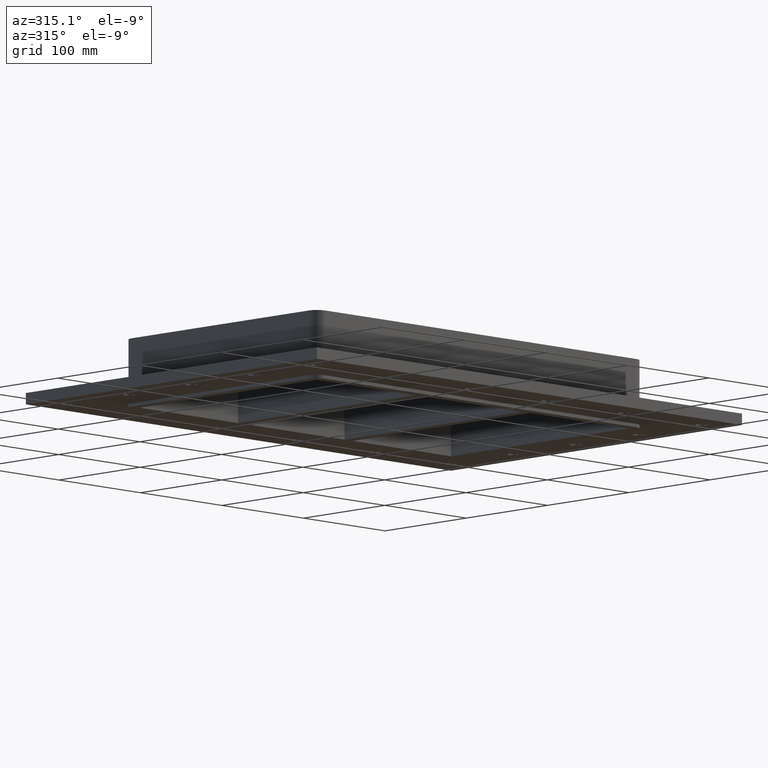
[diagram: clean part render]
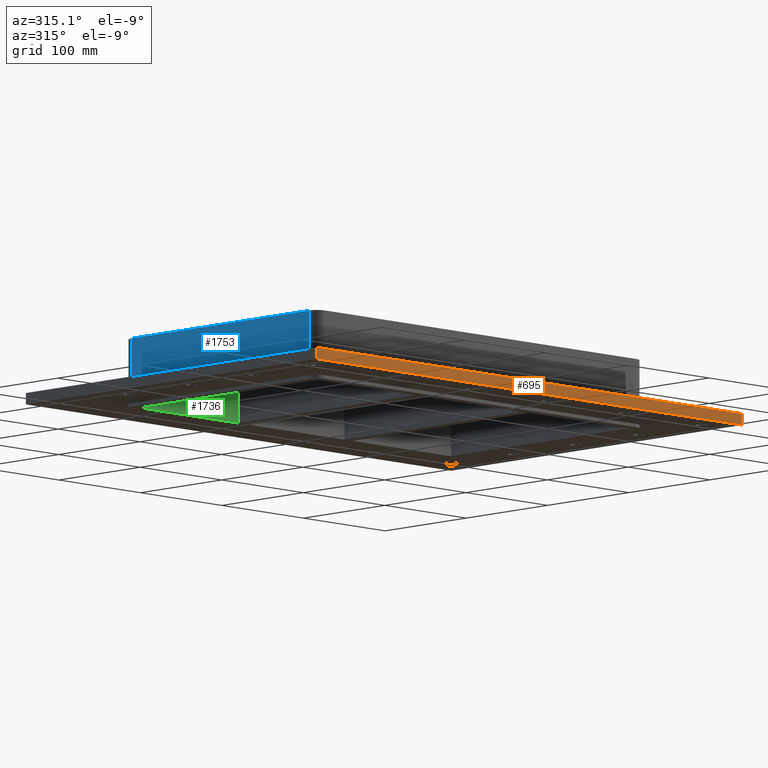
[diagram: same view with three faces highlighted in distinct colors, each labeled with its STEP entity id]
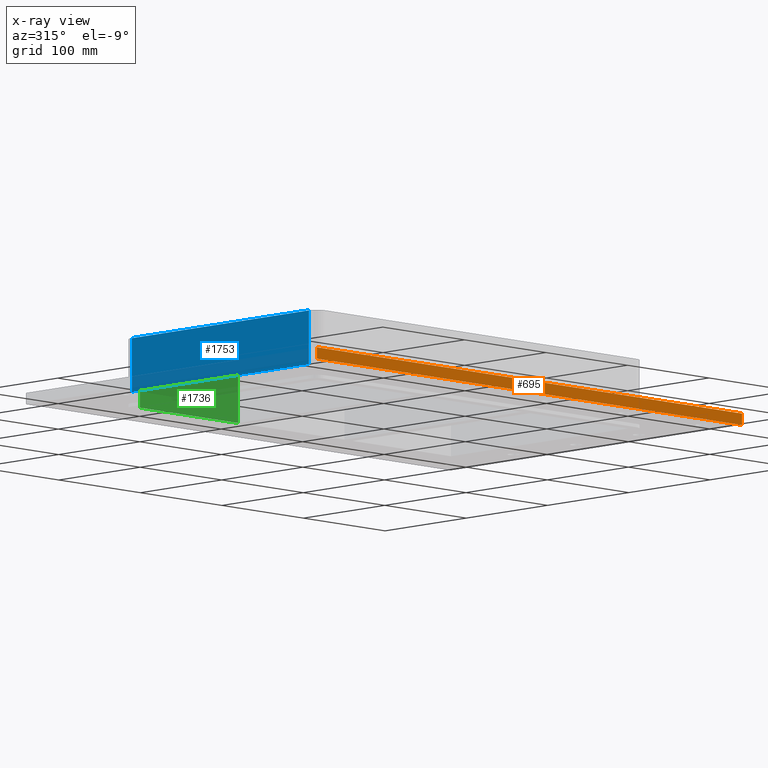
[diagram: x-ray of the same camera — body ghosted, the three highlighted faces saturated]
A machine part, auxiliary view with three faces highlighted in distinct colors.
The next image is the same camera in x-ray (body ghosted, the three faces saturated) — at least one of them is partly hidden behind the body in this view.
Their STEP definitions:

[orange] entity #695 — the highlighted planar face has unit normal (0, -1, 0).
#577=CARTESIAN_POINT('',(-260.75,-179.00000000000006,-27.0));
#578=VERTEX_POINT('',#577);
#587=CARTESIAN_POINT('',(-260.75,-179.00000000000006,-17.0));
#588=VERTEX_POINT('',#587);
#589=CARTESIAN_POINT('',(-260.75,-179.00000000000006,-27.0));
#590=DIRECTION('',(0.0,0.0,1.0));
#591=VECTOR('',#590,10.0);
#592=LINE('',#589,#591);
#593=EDGE_CURVE('',#578,#588,#592,.T.);
#648=CARTESIAN_POINT('',(260.75000000000006,-179.0,-27.0));
#649=VERTEX_POINT('',#648);
#657=CARTESIAN_POINT('',(260.75000000000006,-179.0,-17.0));
#658=VERTEX_POINT('',#657);
#665=CARTESIAN_POINT('',(260.75000000000006,-179.0,-27.0));
#666=DIRECTION('',(0.0,0.0,1.0));
#667=VECTOR('',#666,10.0);
#668=LINE('',#665,#667);
#669=EDGE_CURVE('',#649,#658,#668,.T.);
#674=CARTESIAN_POINT('',(-260.75,-179.00000000000006,-27.0));
#675=DIRECTION('',(0.0,-1.0,0.0));
#676=DIRECTION('',(1.0,0.0,0.0));
#677=AXIS2_PLACEMENT_3D('',#674,#675,#676);
#678=PLANE('',#677);
#679=CARTESIAN_POINT('',(260.75000000000006,-179.0,-27.0));
#680=DIRECTION('',(-1.0,0.0,0.0));
#681=VECTOR('',#680,521.5);
#682=LINE('',#679,#681);
#683=EDGE_CURVE('',#649,#578,#682,.T.);
#684=ORIENTED_EDGE('',*,*,#683,.F.);
#685=ORIENTED_EDGE('',*,*,#669,.T.);
#686=CARTESIAN_POINT('',(-260.74999999999994,-179.00000000000006,-17.0));
#687=DIRECTION('',(1.0,0.0,0.0));
#688=VECTOR('',#687,521.5);
#689=LINE('',#686,#688);
#690=EDGE_CURVE('',#588,#658,#689,.T.);
#691=ORIENTED_EDGE('',*,*,#690,.F.);
#692=ORIENTED_EDGE('',*,*,#593,.F.);
#693=EDGE_LOOP('',(#684,#685,#691,#692));
#694=FACE_OUTER_BOUND('',#693,.T.);
#695=ADVANCED_FACE('',(#694),#678,.T.);

[blue] entity #1753 — the highlighted planar face has unit normal (-1, 0, 0).
#797=CARTESIAN_POINT('',(-200.75000000000003,-109.00000000000006,-17.0));
#798=VERTEX_POINT('',#797);
#806=CARTESIAN_POINT('',(-200.75000000000003,108.99999999999999,-17.0));
#807=VERTEX_POINT('',#806);
#808=CARTESIAN_POINT('',(-200.75000000000009,108.99999999999999,-17.0));
#809=DIRECTION('',(0.0,-1.0,0.0));
#810=VECTOR('',#809,218.00000000000006);
#811=LINE('',#808,#810);
#812=EDGE_CURVE('',#807,#798,#811,.T.);
#1372=CARTESIAN_POINT('',(-200.74999999999989,-109.00000000000003,30.0));
#1373=VERTEX_POINT('',#1372);
#1381=CARTESIAN_POINT('',(-200.74999999999989,-109.00000000000004,30.0));
#1382=DIRECTION('',(0.0,0.0,-1.0));
#1383=VECTOR('',#1382,47.0);
#1384=LINE('',#1381,#1383);
#1385=EDGE_CURVE('',#1373,#798,#1384,.T.);
#1396=CARTESIAN_POINT('',(-200.75000000000011,108.99999999999999,30.0));
#1397=VERTEX_POINT('',#1396);
#1398=CARTESIAN_POINT('',(-200.75000000000011,108.99999999999999,-17.0));
#1399=DIRECTION('',(0.0,0.0,1.0));
#1400=VECTOR('',#1399,47.0);
#1401=LINE('',#1398,#1400);
#1402=EDGE_CURVE('',#807,#1397,#1401,.T.);
#1737=CARTESIAN_POINT('',(-200.75000000000011,119.00000000000003,0.0));
#1738=DIRECTION('',(-1.0,0.0,0.0));
#1739=DIRECTION('',(0.0,-1.0,0.0));
#1740=AXIS2_PLACEMENT_3D('',#1737,#1738,#1739);
#1741=PLANE('',#1740);
#1742=ORIENTED_EDGE('',*,*,#812,.T.);
#1743=ORIENTED_EDGE('',*,*,#1385,.F.);
#1744=CARTESIAN_POINT('',(-200.75000000000011,109.0,30.0));
#1745=DIRECTION('',(0.0,-1.0,0.0));
#1746=VECTOR('',#1745,218.00000000000003);
#1747=LINE('',#1744,#1746);
#1748=EDGE_CURVE('',#1397,#1373,#1747,.T.);
#1749=ORIENTED_EDGE('',*,*,#1748,.F.);
#1750=ORIENTED_EDGE('',*,*,#1402,.F.);
#1751=EDGE_LOOP('',(#1742,#1743,#1749,#1750));
#1752=FACE_OUTER_BOUND('',#1751,.T.);
#1753=ADVANCED_FACE('',(#1752),#1741,.T.);

[green] entity #1736 — the highlighted planar face has unit normal (0, 1, 0).
#1308=CARTESIAN_POINT('',(-70.250000000000071,108.99999999999999,-30.0));
#1309=VERTEX_POINT('',#1308);
#1316=CARTESIAN_POINT('',(-190.75000000000011,108.99999999999999,-30.0));
#1317=VERTEX_POINT('',#1316);
#1318=CARTESIAN_POINT('',(-70.250000000000071,108.99999999999999,-30.0));
#1319=DIRECTION('',(-1.0,0.0,0.0));
#1320=VECTOR('',#1319,120.50000000000004);
#1321=LINE('',#1318,#1320);
#1322=EDGE_CURVE('',#1309,#1317,#1321,.T.);
#1647=CARTESIAN_POINT('',(-190.75000000000011,108.99999999999999,30.0));
#1648=VERTEX_POINT('',#1647);
#1649=CARTESIAN_POINT('',(-190.75000000000011,108.99999999999999,30.0));
#1650=DIRECTION('',(0.0,0.0,-1.0));
#1651=VECTOR('',#1650,60.0);
#1652=LINE('',#1649,#1651);
#1653=EDGE_CURVE('',#1648,#1317,#1652,.T.);
#1703=CARTESIAN_POINT('',(-70.250000000000071,108.99999999999999,30.0));
#1704=VERTEX_POINT('',#1703);
#1711=CARTESIAN_POINT('',(-70.250000000000071,108.99999999999999,30.0));
#1712=DIRECTION('',(0.0,0.0,-1.0));
#1713=VECTOR('',#1712,60.0);
#1714=LINE('',#1711,#1713);
#1715=EDGE_CURVE('',#1704,#1309,#1714,.T.);
#1720=CARTESIAN_POINT('',(-190.75000000000011,108.99999999999999,30.0));
#1721=DIRECTION('',(0.0,1.0,0.0));
#1722=DIRECTION('',(1.0,0.0,0.0));
#1723=AXIS2_PLACEMENT_3D('',#1720,#1721,#1722);
#1724=PLANE('',#1723);
#1725=ORIENTED_EDGE('',*,*,#1322,.F.);
#1726=ORIENTED_EDGE('',*,*,#1715,.F.);
#1727=CARTESIAN_POINT('',(-190.75000000000011,108.99999999999999,30.0));
#1728=DIRECTION('',(1.0,0.0,0.0));
#1729=VECTOR('',#1728,120.50000000000004);
#1730=LINE('',#1727,#1729);
#1731=EDGE_CURVE('',#1648,#1704,#1730,.T.);
#1732=ORIENTED_EDGE('',*,*,#1731,.F.);
#1733=ORIENTED_EDGE('',*,*,#1653,.T.);
#1734=EDGE_LOOP('',(#1725,#1726,#1732,#1733));
#1735=FACE_OUTER_BOUND('',#1734,.T.);
#1736=ADVANCED_FACE('',(#1735),#1724,.F.);